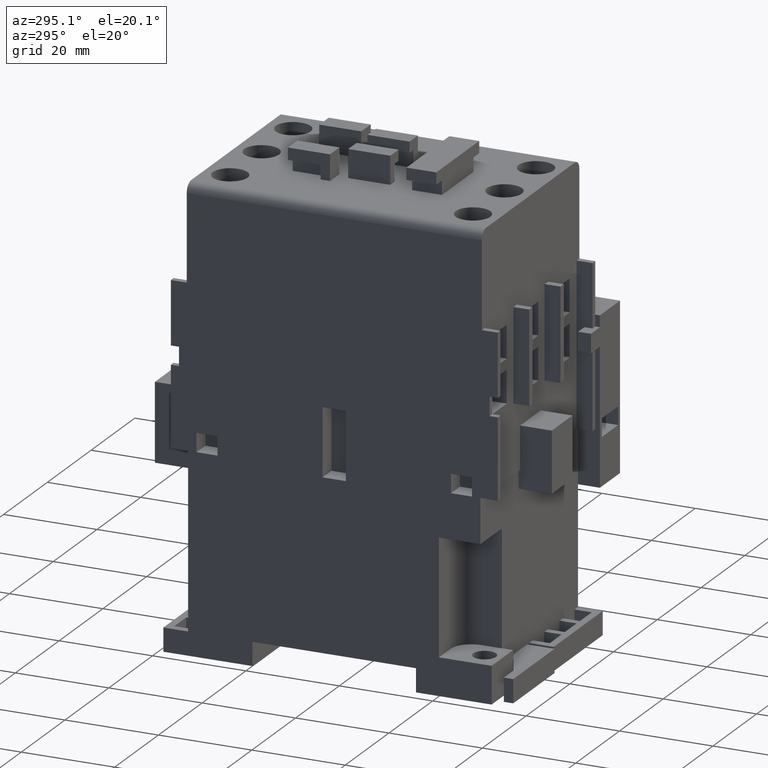
[diagram: clean part render]
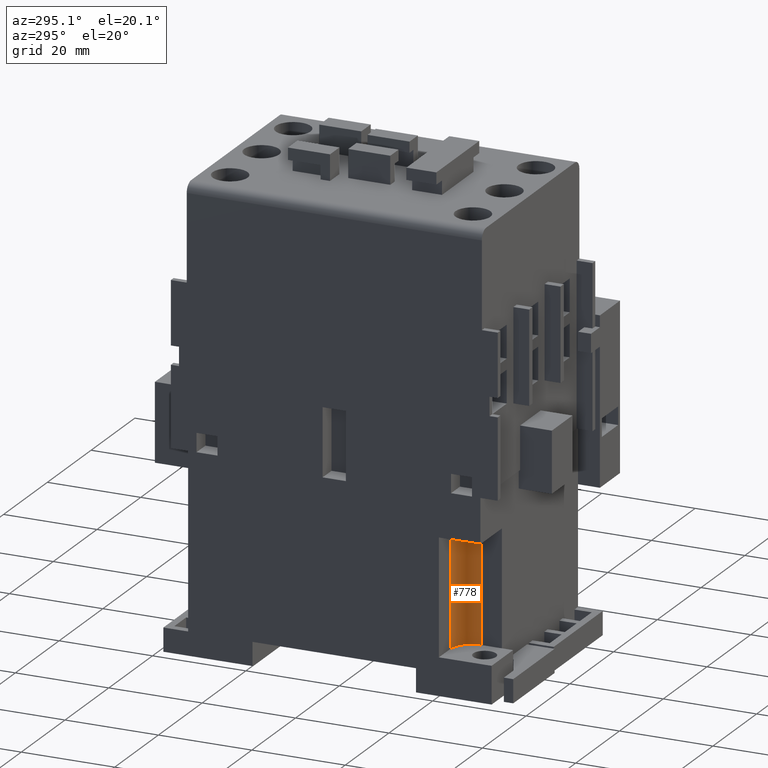
[diagram: same view with one face highlighted and labeled with its STEP entity id]
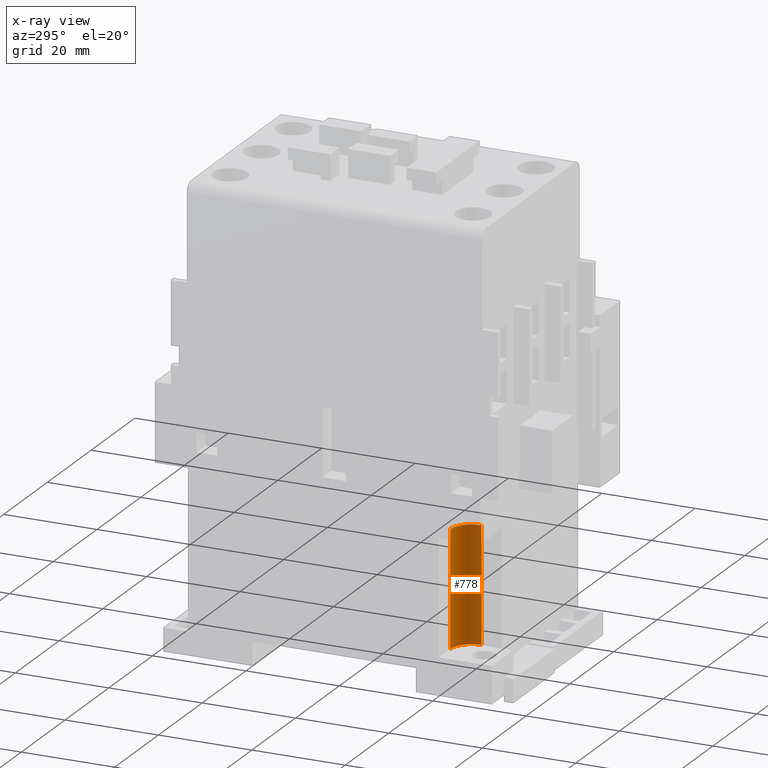
[diagram: x-ray of the same camera — body ghosted, the highlighted face saturated]
A machine part, auxiliary view. The second image highlights one B-rep face of the part: STEP entity #778.
The next image is the same camera in x-ray: the body ghosted, the highlighted face saturated — about 0% of this face is hidden behind the body in this view.
In plain terms, the highlighted cylindrical surface (edge-blend (fillet) strip) has radius 4.5 mm, axis along (0, 0, -1).
Its self-contained STEP definition (entity closure, byte-faithful):
#119=CYLINDRICAL_SURFACE('',#9736,4.5);
#147=CIRCLE('',#9362,4.5);
#239=CIRCLE('',#9735,4.5);
#778=ADVANCED_FACE('',(#1688),#119,.F.);
#1688=FACE_OUTER_BOUND('',#2222,.T.);
#2222=EDGE_LOOP('',(#4113,#4114,#4115,#4116));
#4113=ORIENTED_EDGE('',*,*,#6065,.T.);
#4114=ORIENTED_EDGE('',*,*,#6744,.F.);
#4115=ORIENTED_EDGE('',*,*,#6745,.F.);
#4116=ORIENTED_EDGE('',*,*,#6742,.T.);
#5182=VERTEX_POINT('',#12842);
#5183=VERTEX_POINT('',#12844);
#5617=VERTEX_POINT('',#14235);
#5618=VERTEX_POINT('',#14239);
#6065=EDGE_CURVE('',#5183,#5182,#147,.T.);
#6742=EDGE_CURVE('',#5617,#5183,#7907,.T.);
#6744=EDGE_CURVE('',#5618,#5182,#7909,.T.);
#6745=EDGE_CURVE('',#5617,#5618,#239,.T.);
#7907=LINE('',#14234,#9018);
#7909=LINE('',#14238,#9020);
#9018=VECTOR('',#11591,1.);
#9020=VECTOR('',#11595,1.);
#9362=AXIS2_PLACEMENT_3D('',#12843,#10262,#10263);
#9735=AXIS2_PLACEMENT_3D('',#14240,#11596,#11597);
#9736=AXIS2_PLACEMENT_3D('',#14241,#11598,#11599);
#10262=DIRECTION('',(0.,0.,-1.));
#10263=DIRECTION('',(1.,0.,0.));
#11591=DIRECTION('',(0.,0.,-1.));
#11595=DIRECTION('',(0.,0.,-1.));
#11596=DIRECTION('',(0.,0.,-1.));
#11597=DIRECTION('',(1.,0.,0.));
#11598=DIRECTION('',(0.,0.,-1.));
#11599=DIRECTION('',(-1.,0.,0.));
#12842=CARTESIAN_POINT('',(-12.5,-26.8999999999992,2.99999999999999));
#12843=CARTESIAN_POINT('',(-17.,-26.8999999999992,2.99999999999999));
#12844=CARTESIAN_POINT('',(-17.,-22.3999999999992,2.99999999999999));
#14234=CARTESIAN_POINT('',(-17.,-22.3999999999992,27.75));
#14235=CARTESIAN_POINT('',(-17.,-22.3999999999992,27.75));
#14238=CARTESIAN_POINT('',(-12.5,-26.8999999999992,27.75));
#14239=CARTESIAN_POINT('',(-12.5,-26.8999999999992,27.75));
#14240=CARTESIAN_POINT('',(-17.,-26.8999999999992,27.75));
#14241=CARTESIAN_POINT('',(-17.,-26.8999999999992,27.75));